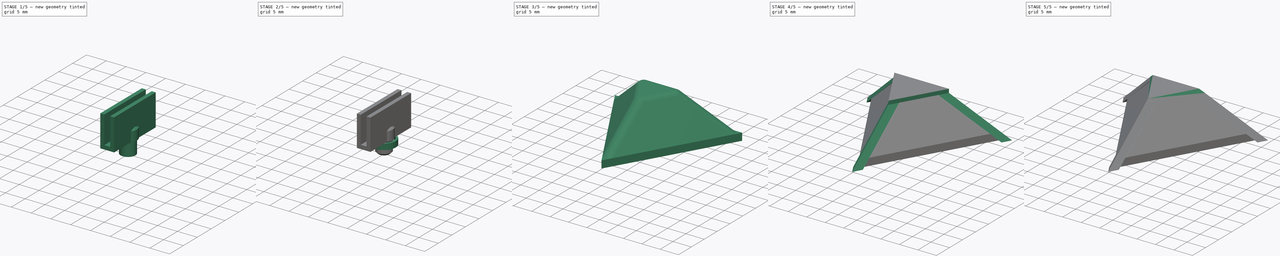
[diagram: build sequence overview — one tinted view per stage of 5, left to right]
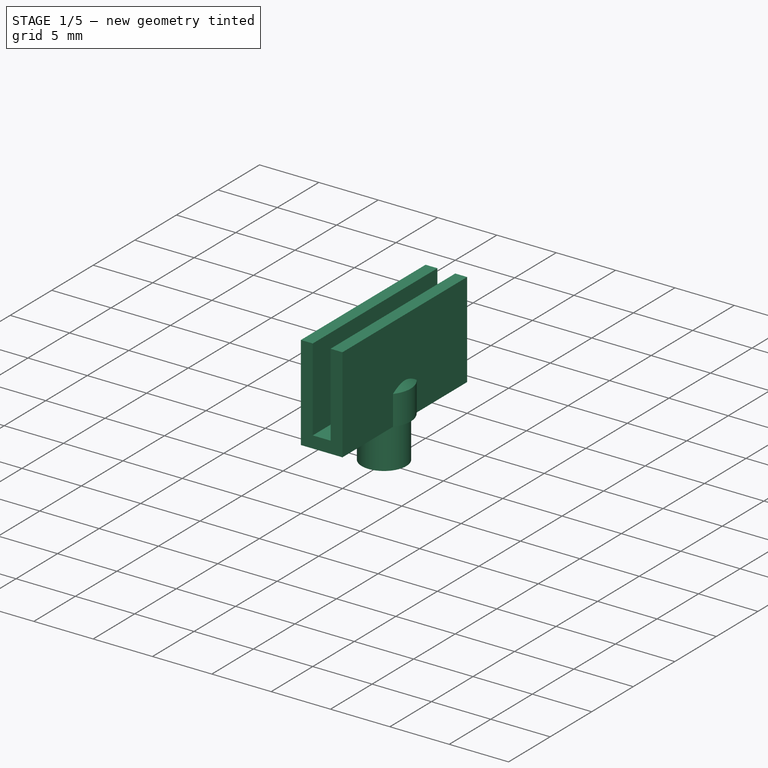
[diagram: stage 1 of 5 — iso view after this stage's code; geometry added in this stage tinted green]
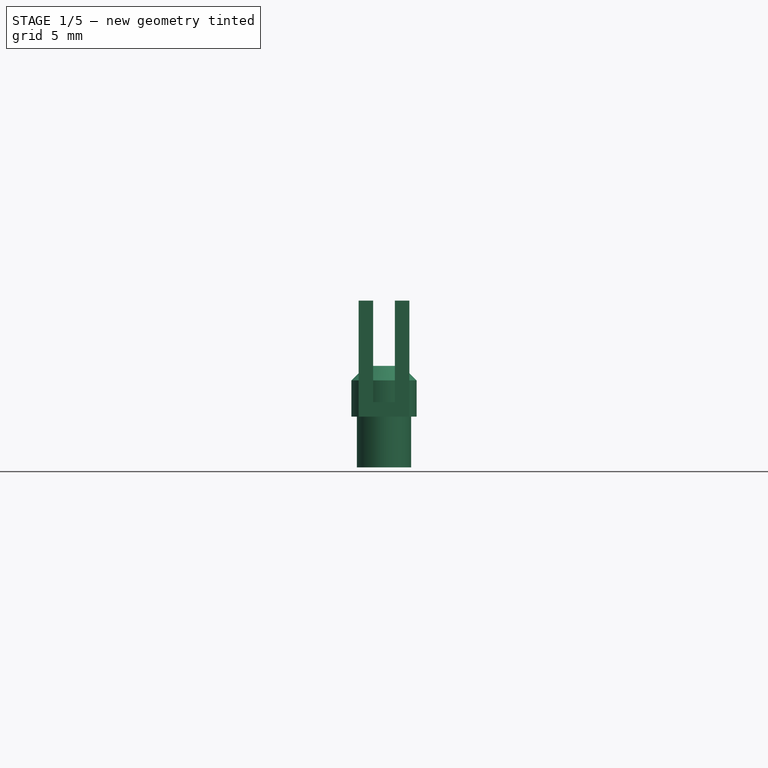
[diagram: stage 1 of 5 — front view after this stage's code; geometry added in this stage tinted green]
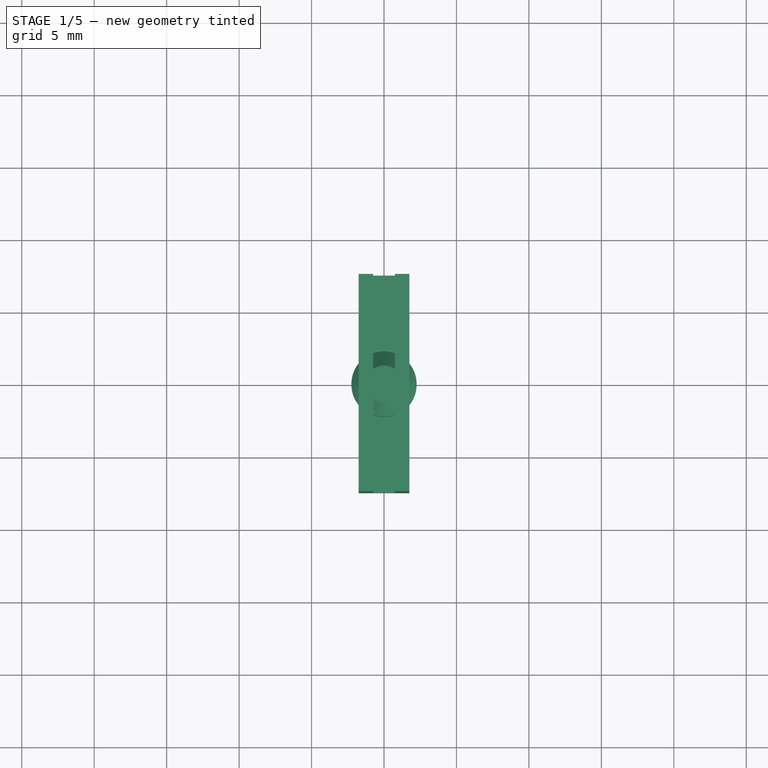
[diagram: stage 1 of 5 — top view after this stage's code; geometry added in this stage tinted green]
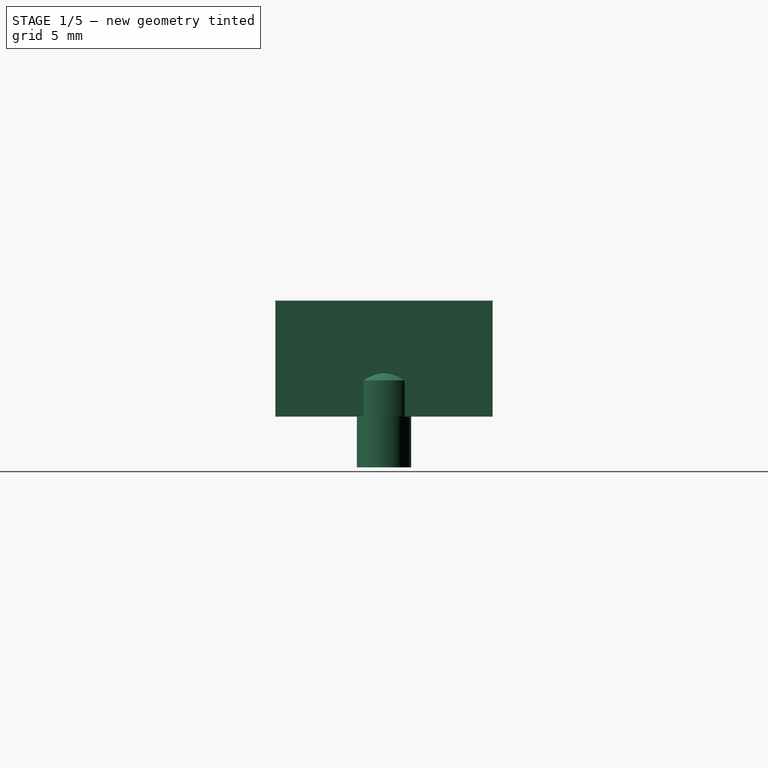
[diagram: stage 1 of 5 — right view after this stage's code; geometry added in this stage tinted green]
FCSTD DOCUMENT  (FreeCAD 0.20R29603 (Git))
Label: SafeCrystal
License: All rights reserved
LicenseURL: http://en.wikipedia.org/wiki/All_rights_reserved
objects: Sketcher::SketchObject×22, PartDesign::Pad×9, PartDesign::Body×6, PartDesign::AdditiveLoft×5, PartDesign::Chamfer×4, PartDesign::Pocket×2, PartDesign::Fillet×2, PartDesign::Boolean×1
note: 73 computed .brp shape members not serialized (recipe doc carries the construction recipe); baked Part::Feature solids carry a one-line shape summary decoded from their .brp

FEATURE [PartDesign::Body] Body002  label="Crystal"
  Group = -> [Sketch013,Pad002,Sketch014,Sketch015,AdditiveLoft004,Sketch016,Pocket001,Fillet001]
  Origin = -> Origin002
  Tip = -> Fillet001
FEATURE [Sketcher::SketchObject] Sketch017
  FullyConstrained = true
  MapMode = 5
  Support = -> [XY_Plane003]
  sketch-geometry (1):
    g0: Circle CenterX=0 CenterY=0 CenterZ=0 NormalX=0 NormalY=0 NormalZ=1 AngleXU=0 Radius=2.25
  constraints (2):
    c: Coincident(g0,g-1)
    c: Diameter(g0) = 4.5
FEATURE [PartDesign::Pad] Pad003
  Direction = (0,0,1)
  Length = 3.5
  Length2 = 10
  Profile = -> Sketch017
  ReferenceAxis = -> Sketch017 [N_Axis]
  Type = 0
FEATURE [PartDesign::Chamfer] Chamfer001
  Angle = 45
  Base = -> Pad003 [Edge3]
  BaseFeature = -> Pad003
  ChamferType = 0
  FlipDirection = false
  Size = 1
  Size2 = 1
  SupportTransform = false
  UseAllEdges = false
FEATURE [PartDesign::Body] Body004  label="Fixer"
  Group = -> [Sketch018,Pad004,Sketch019,Pad005]
  Origin = -> Origin004
  Tip = -> Pad005
FEATURE [Sketcher::SketchObject] Sketch020
  FullyConstrained = true
  MapMode = 5
  Placement = pos=(0,0,0) rot=(1,0,0;3.14159rad)
  Support = -> [Chamfer001]
  sketch-geometry (1):
    g0: Circle CenterX=0 CenterY=0 CenterZ=0 NormalX=0 NormalY=0 NormalZ=1 AngleXU=0 Radius=1.875
  constraints (2):
    c: Coincident(g0,g-1)
    c: Diameter(g0) = 3.75
FEATURE [PartDesign::Pad] Pad006
  BaseFeature = -> Chamfer001
  Direction = (0,0,-1)
  Length = 3.5
  Length2 = 10
  Profile = -> Sketch020
  ReferenceAxis = -> Sketch020 [N_Axis]
  Type = 0
FEATURE [PartDesign::Body] Body003  label="Kernel"
  Group = -> [Sketch017,Pad003,Chamfer001,Sketch020,Pad006,Chamfer002,Chamfer003]
  Origin = -> Origin003
  Tip = -> Chamfer003
FEATURE [Sketcher::SketchObject] Sketch021
  FullyConstrained = true
  MapMode = 5
  Support = -> [XY_Plane005]
  sketch-geometry (5):
    g0: LineSegment StartX=-1.75 StartY=-7.5 StartZ=0 EndX=-1.75 EndY=7.5 EndZ=0
    g1: LineSegment StartX=-1.75 StartY=7.5 StartZ=0 EndX=1.75 EndY=7.5 EndZ=0
    g2: LineSegment StartX=1.75 StartY=7.5 StartZ=0 EndX=1.75 EndY=-7.5 EndZ=0
    g3: LineSegment StartX=1.75 StartY=-7.5 StartZ=0 EndX=-1.75 EndY=-7.5 EndZ=0
    g4: GeomPoint X=0 Y=0 Z=0
  constraints (12):
    c: Coincident(g0,g1)
    c: Coincident(g1,g2)
    c: Coincident(g2,g3)
    c: Coincident(g3,g0)
    c: Horizontal(g1)
    c: Horizontal(g3)
    c: Vertical(g0)
    c: Vertical(g2)
    c: Symmetric(g1,g0,g4)
    c: Coincident(g4,g-1)
    c: DistanceX(g1,g1) = 3.5
    c: DistanceY(g0,g0) = 15
FEATURE [PartDesign::Pad] Pad007
  Direction = (0,0,1)
  Length = 1
  Length2 = 10
  Profile = -> Sketch021
  ReferenceAxis = -> Sketch021 [N_Axis]
  Type = 0
FEATURE [Sketcher::SketchObject] Sketch022
  FullyConstrained = true
  MapMode = 5
  Placement = pos=(0,0,1) rot=(0,0,1;0rad)
  Support = -> [Pad007]
  sketch-geometry (8):
    g0: LineSegment StartX=1.75 StartY=7.5 StartZ=0 EndX=0.75 EndY=7.5 EndZ=0
    g1: LineSegment StartX=0.75 StartY=7.5 StartZ=0 EndX=0.75 EndY=-7.5 EndZ=0
    g2: LineSegment StartX=0.75 StartY=-7.5 StartZ=0 EndX=1.75 EndY=-7.5 EndZ=0
    g3: LineSegment StartX=1.75 StartY=-7.5 StartZ=0 EndX=1.75 EndY=7.5 EndZ=0
    g4: LineSegment StartX=-1.75 StartY=7.5 StartZ=0 EndX=-0.75 EndY=7.5 EndZ=0
    g5: LineSegment StartX=-0.75 StartY=7.5 StartZ=0 EndX=-0.75 EndY=-7.5 EndZ=0
    g6: LineSegment StartX=-0.75 StartY=-7.5 StartZ=0 EndX=-1.75 EndY=-7.5 EndZ=0
    g7: LineSegment StartX=-1.75 StartY=-7.5 StartZ=0 EndX=-1.75 EndY=7.5 EndZ=0
  constraints (21):
    c: Coincident(g0,g1)
    c: Coincident(g1,g2)
    c: Coincident(g2,g3)
    c: Coincident(g3,g0)
    c: Horizontal(g0)
    c: Horizontal(g2)
    c: Vertical(g1)
    c: Coincident(g4,g5)
    c: Coincident(g5,g6)
    c: Coincident(g6,g7)
    c: Coincident(g7,g4)
    c: Horizontal(g4)
    c: Horizontal(g6)
    c: Vertical(g5)
    c: Vertical(g7)
    c: DistanceY(g3,g3) = 15
    c: Symmetric(g0,g2,g-1)
    c: DistanceX(g0,g0) = 1
    c: DistanceX(g0) = 1.75
    c: Symmetric(g4,g0,g-2)
    c: Symmetric(g6,g2,g-2)
FEATURE [PartDesign::Pad] Pad008
  BaseFeature = -> Pad007
  Direction = (0,0,1)
  Length = 7
  Length2 = 10
  Profile = -> Sketch022
  ReferenceAxis = -> Sketch022 [N_Axis]
  Type = 0
FEATURE [PartDesign::Body] Body005  label="Clip"
  Group = -> [Sketch021,Pad007,Sketch022,Pad008]
  Origin = -> Origin005
  Tip = -> Pad008
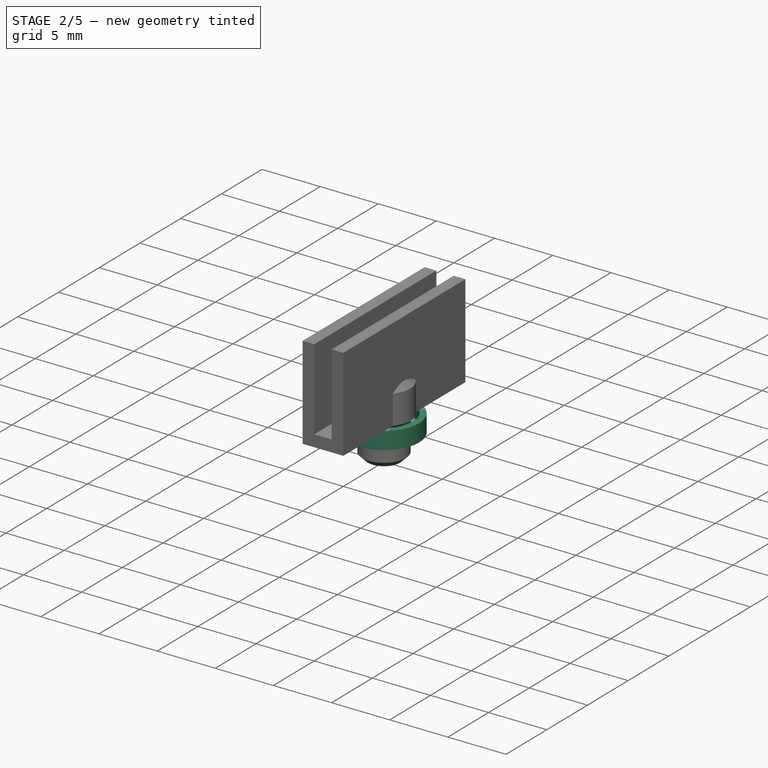
[diagram: stage 2 of 5 — iso view after this stage's code; geometry added in this stage tinted green]
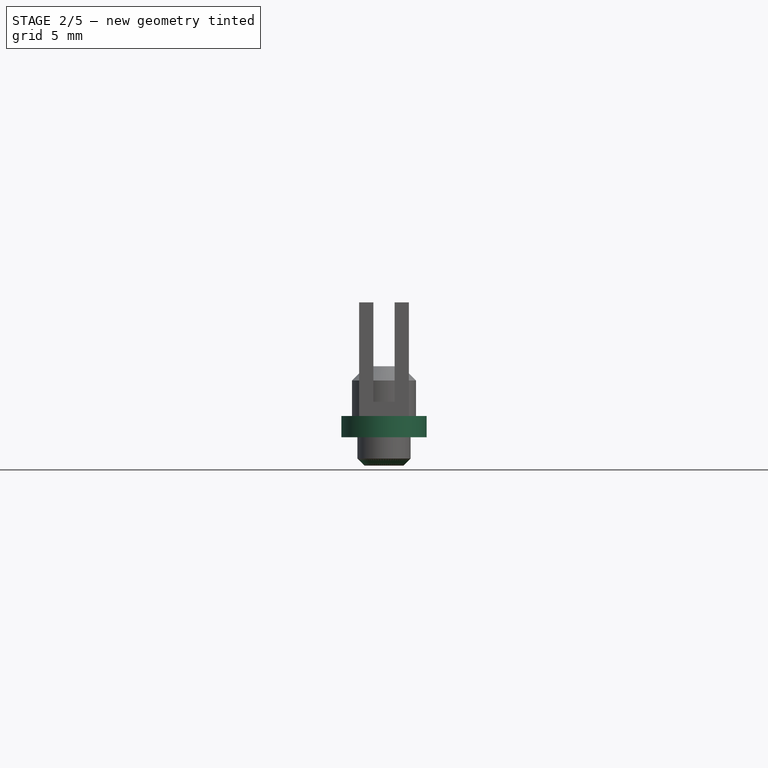
[diagram: stage 2 of 5 — front view after this stage's code; geometry added in this stage tinted green]
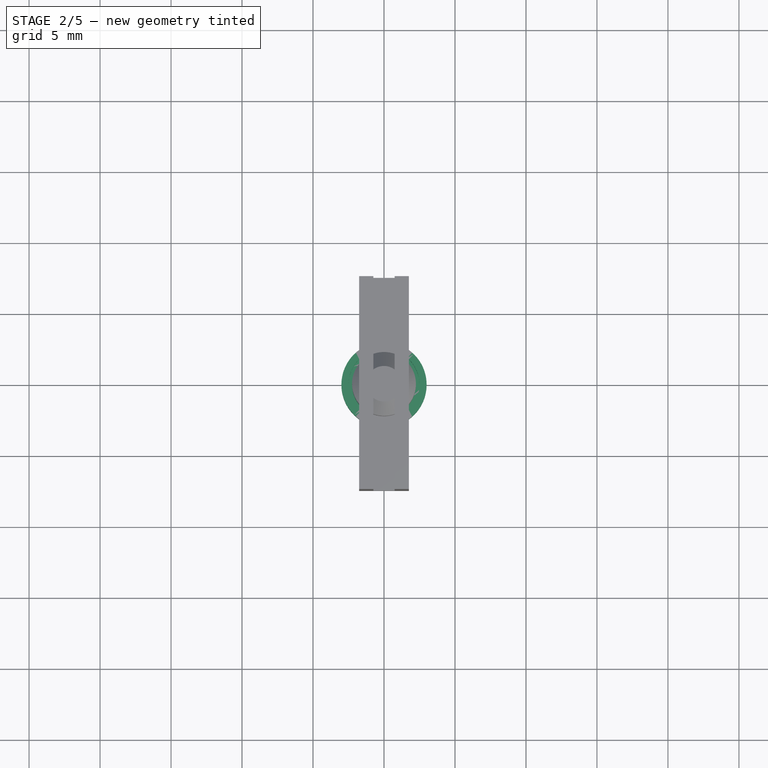
[diagram: stage 2 of 5 — top view after this stage's code; geometry added in this stage tinted green]
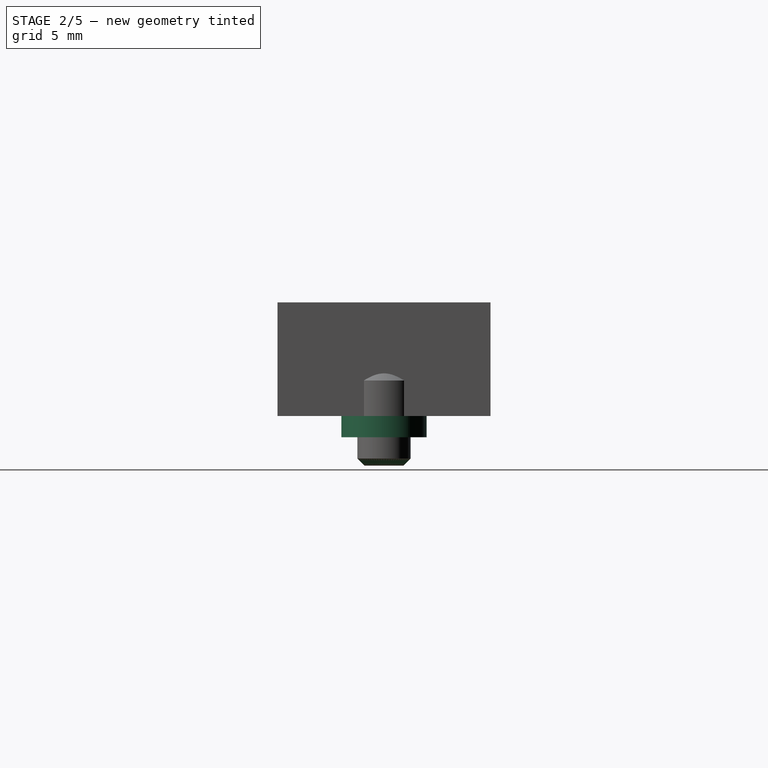
[diagram: stage 2 of 5 — right view after this stage's code; geometry added in this stage tinted green]
FEATURE [Sketcher::SketchObject] Sketch018
  FullyConstrained = true
  MapMode = 5
  Support = -> [XY_Plane004]
  sketch-geometry (2):
    g0: Circle CenterX=0 CenterY=0 CenterZ=0 NormalX=0 NormalY=0 NormalZ=1 AngleXU=0 Radius=2.5
    g1: Circle CenterX=0 CenterY=0 CenterZ=0 NormalX=0 NormalY=0 NormalZ=1 AngleXU=0 Radius=3
  constraints (4):
    c: Coincident(g0,g-1)
    c: Coincident(g1,g0)
    c: Diameter(g0) = 5
    c: Diameter(g1) = 6
FEATURE [PartDesign::Pad] Pad004
  Direction = (0,0,1)
  Length = 1
  Length2 = 10
  Profile = -> Sketch018
  ReferenceAxis = -> Sketch018 [N_Axis]
  Reversed = true
  Type = 0
FEATURE [Sketcher::SketchObject] Sketch019
  FullyConstrained = true
  MapMode = 5
  Placement = pos=(0,0,-1) rot=(1,0,0;3.14159rad)
  Support = -> [Pad004]
  sketch-geometry (1):
    g0: Circle CenterX=0 CenterY=0 CenterZ=0 NormalX=0 NormalY=0 NormalZ=1 AngleXU=0 Radius=3
  constraints (2):
    c: Coincident(g0,g-1)
    c: Diameter(g0) = 6
FEATURE [PartDesign::Pad] Pad005
  BaseFeature = -> Pad004
  Direction = (0,0,-1)
  Length = 0.5
  Length2 = 10
  Profile = -> Sketch019
  ReferenceAxis = -> Sketch019 [N_Axis]
  Type = 0
FEATURE [PartDesign::Chamfer] Chamfer002
  Angle = 45
  Base = -> Pad006 [Edge6]
  BaseFeature = -> Pad006
  ChamferType = 0
  FlipDirection = false
  Size = 0.36
  Size2 = 1
  SupportTransform = false
  UseAllEdges = false
FEATURE [PartDesign::Chamfer] Chamfer003
  Angle = 45
  Base = -> Chamfer002 [Edge8]
  BaseFeature = -> Chamfer002
  ChamferType = 0
  FlipDirection = false
  Size = 0.5
  Size2 = 1
  SupportTransform = false
  UseAllEdges = false
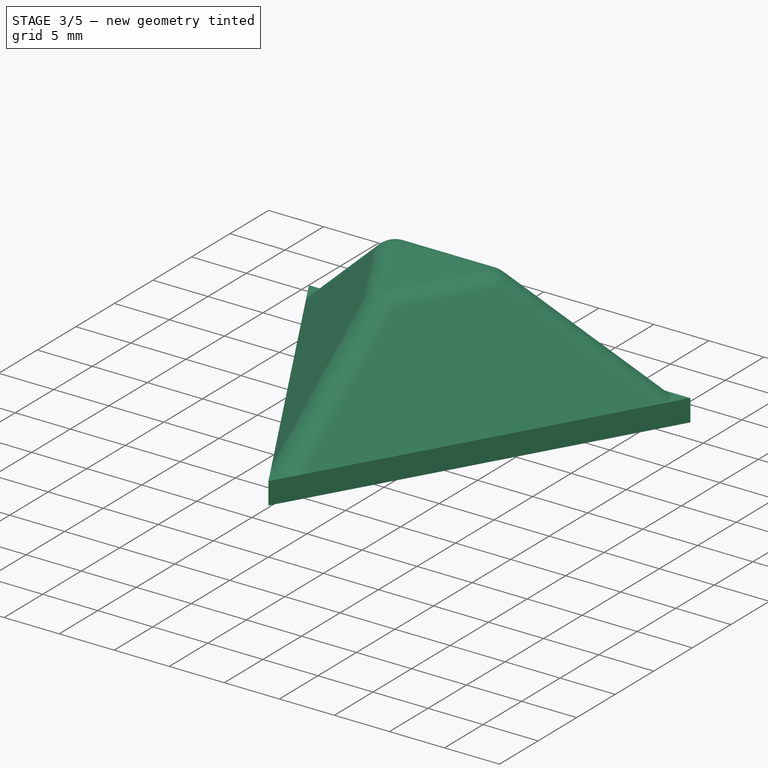
[diagram: stage 3 of 5 — iso view after this stage's code; geometry added in this stage tinted green]
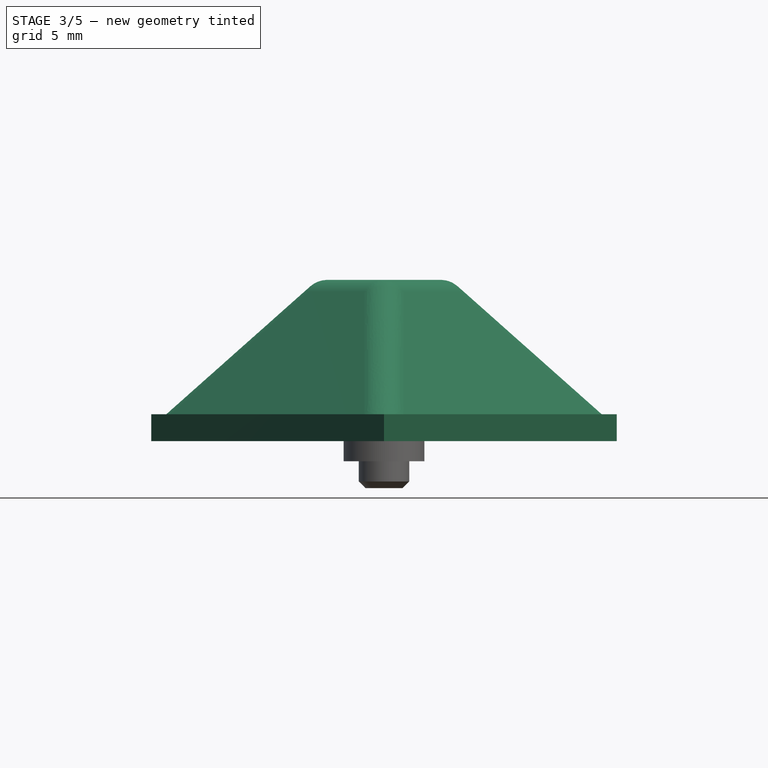
[diagram: stage 3 of 5 — front view after this stage's code; geometry added in this stage tinted green]
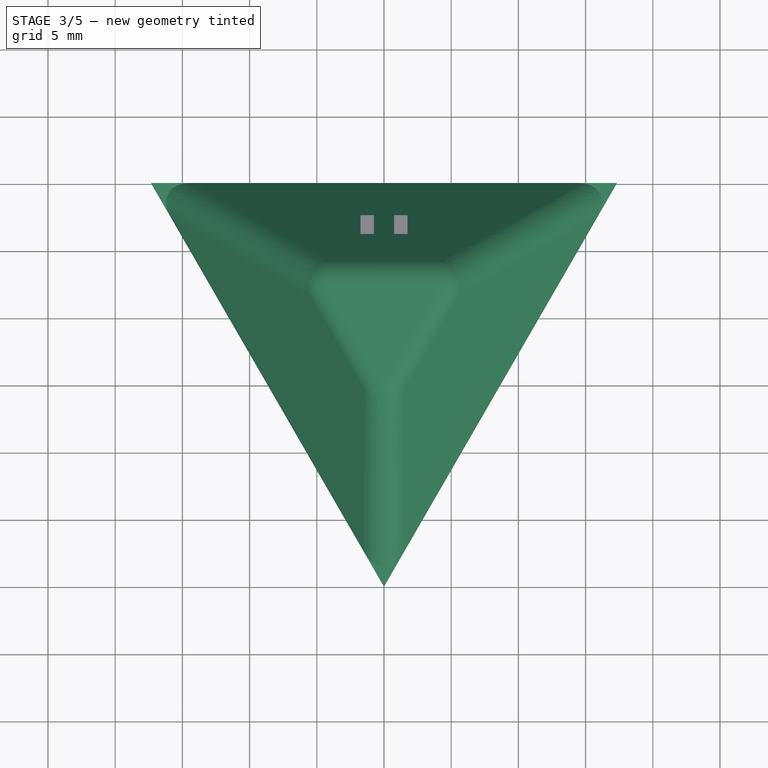
[diagram: stage 3 of 5 — top view after this stage's code; geometry added in this stage tinted green]
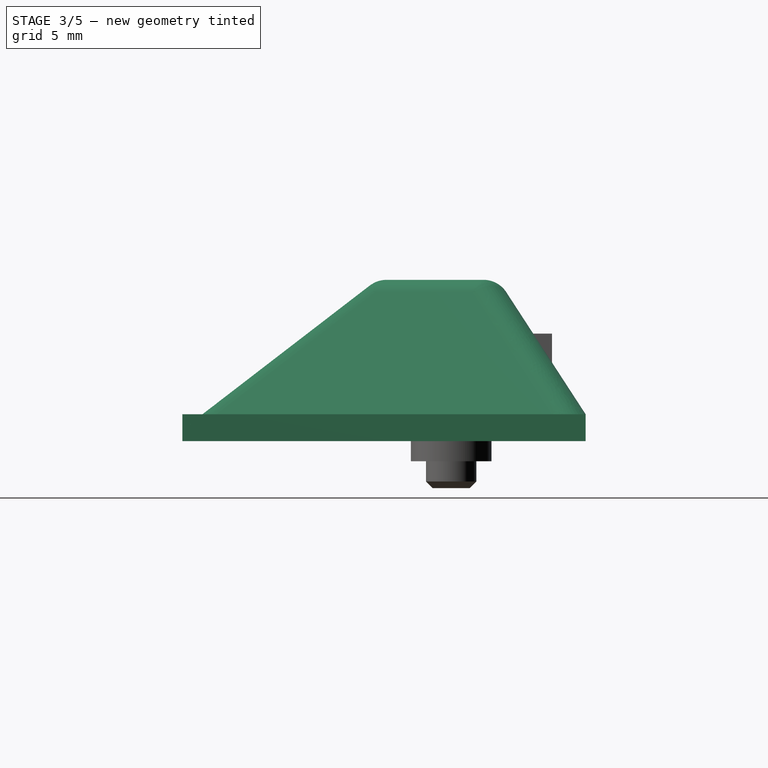
[diagram: stage 3 of 5 — right view after this stage's code; geometry added in this stage tinted green]
FEATURE [Sketcher::SketchObject] Sketch
  FullyConstrained = true
  MapMode = 5
  Support = -> [XY_Plane]
  sketch-geometry (7):
    g0: Circle CenterX=0 CenterY=0 CenterZ=0 NormalX=0 NormalY=0 NormalZ=1 AngleXU=0 Radius=20
    g1: LineSegment StartX=0 StartY=0 StartZ=0 EndX=17.3205 EndY=10 EndZ=0
    g2: LineSegment StartX=0 StartY=0 StartZ=0 EndX=-17.3205 EndY=10 EndZ=0
    g3: LineSegment StartX=0 StartY=0 StartZ=0 EndX=-6e-16 EndY=-20 EndZ=0
    g4: LineSegment StartX=17.3205 StartY=10 StartZ=0 EndX=-17.3205 EndY=10 EndZ=0
    g5: LineSegment StartX=-17.3205 StartY=10 StartZ=0 EndX=0 EndY=-20 EndZ=0
    g6: LineSegment StartX=-6e-16 StartY=-20 StartZ=0 EndX=17.3205 EndY=10 EndZ=0
  constraints (17):
    c: Coincident(g0,g-1)
    c: Diameter(g0) = 40
    c: Coincident(g1,g0)
    c: PointOnObject(g1,g0)
    c: Coincident(g2,g0)
    c: PointOnObject(g2,g0)
    c: Coincident(g3,g0)
    c: PointOnObject(g3,g0)
    c: Angle(g-1,g1) = 0.523599
    c: Angle(g-1,g2) = 2.61799
    c: Angle(g3,g-1) = 1.5708
    c: Coincident(g2,g4)
    c: Coincident(g1,g4)
    c: Coincident(g5,g4)
    c: Coincident(g5,g3)
    c: Coincident(g6,g5)
    c: Coincident(g6,g4)
FEATURE [PartDesign::Pad] Pad
  Direction = (0,0,1)
  Length = 2
  Length2 = 10
  Profile = -> Sketch
  ReferenceAxis = -> Sketch [N_Axis]
  Type = 0
FEATURE [PartDesign::Body] Body001  label="OuterBorder"
  Group = -> [Sketch004,Sketch005,Sketch006,AdditiveLoft001,Sketch007,Sketch008,Sketch010,Pad001,AdditiveLoft002,Sketch011,Sketch012,AdditiveLoft003,Chamfer,Boolean]
  Origin = -> Origin001
  Tip = -> Boolean
FEATURE [Sketcher::SketchObject] Sketch013
  FullyConstrained = true
  MapMode = 5
  Support = -> [XY_Plane002]
  sketch-geometry (7):
    g0: Circle CenterX=0 CenterY=0 CenterZ=0 NormalX=0 NormalY=0 NormalZ=1 AngleXU=0 Radius=20
    g1: LineSegment StartX=0 StartY=0 StartZ=0 EndX=17.3205 EndY=10 EndZ=0
    g2: LineSegment StartX=0 StartY=0 StartZ=0 EndX=-17.3205 EndY=10 EndZ=0
    g3: LineSegment StartX=0 StartY=0 StartZ=0 EndX=-6e-16 EndY=-20 EndZ=0
    g4: LineSegment StartX=17.3205 StartY=10 StartZ=0 EndX=-17.3205 EndY=10 EndZ=0
    g5: LineSegment StartX=-17.3205 StartY=10 StartZ=0 EndX=0 EndY=-20 EndZ=0
    g6: LineSegment StartX=-6e-16 StartY=-20 StartZ=0 EndX=17.3205 EndY=10 EndZ=0
  constraints (17):
    c: Coincident(g0,g-1)
    c: Diameter(g0) = 40
    c: Coincident(g1,g0)
    c: PointOnObject(g1,g0)
    c: Coincident(g2,g0)
    c: PointOnObject(g2,g0)
    c: Coincident(g3,g0)
    c: PointOnObject(g3,g0)
    c: Angle(g-1,g1) = 0.523599
    c: Angle(g-1,g2) = 2.61799
    c: Angle(g3,g-1) = 1.5708
    c: Coincident(g2,g4)
    c: Coincident(g1,g4)
    c: Coincident(g5,g4)
    c: Coincident(g5,g3)
    c: Coincident(g6,g5)
    c: Coincident(g6,g4)
FEATURE [PartDesign::Pad] Pad002
  Direction = (0,0,1)
  Length = 2
  Length2 = 10
  Profile = -> Sketch013
  ReferenceAxis = -> Sketch013 [N_Axis]
  Type = 0
FEATURE [Sketcher::SketchObject] Sketch014
  AttachmentOffset = pos=(0,0,10) rot=(0,0,1;0rad)
  FullyConstrained = true
  MapMode = 5
  Placement = pos=(0,0,12) rot=(0,0,1;0rad)
  Support = -> [Pad002]
  sketch-geometry (4):
    g0: LineSegment StartX=-1.8e-15 StartY=-7 StartZ=0 EndX=6.06218 EndY=3.5 EndZ=0
    g1: LineSegment StartX=6.06218 StartY=3.5 StartZ=0 EndX=-6.06218 EndY=3.5 EndZ=0
    g2: LineSegment StartX=-6.06218 StartY=3.5 StartZ=0 EndX=-1.8e-15 EndY=-7 EndZ=0
    g3: Circle CenterX=0 CenterY=0 CenterZ=0 NormalX=0 NormalY=0 NormalZ=1 AngleXU=0 Radius=7
  constraints (11):
    c: Coincident(g0,g1)
    c: Coincident(g1,g2)
    c: Coincident(g2,g0)
    c: Equal(g0,g1)
    c: Equal(g0,g2)
    c: PointOnObject(g0,g3)
    c: PointOnObject(g1,g3)
    c: PointOnObject(g2,g3)
    c: Coincident(g3,g-1)
    c: PointOnObject(g2,g-2)
    c: Diameter(g3) = 14
FEATURE [Sketcher::SketchObject] Sketch015
  FullyConstrained = true
  MapMode = 5
  Placement = pos=(0,0,2) rot=(0,0,1;0rad)
  Support = -> [Pad002]
  sketch-geometry (7):
    g0: Circle CenterX=0 CenterY=0 CenterZ=0 NormalX=0 NormalY=0 NormalZ=1 AngleXU=0 Radius=20
    g1: LineSegment StartX=0 StartY=0 StartZ=0 EndX=17.3205 EndY=10 EndZ=0
    g2: LineSegment StartX=0 StartY=0 StartZ=0 EndX=-17.3205 EndY=10 EndZ=0
    g3: LineSegment StartX=0 StartY=0 StartZ=0 EndX=-6e-16 EndY=-20 EndZ=0
    g4: LineSegment StartX=17.3205 StartY=10 StartZ=0 EndX=-17.3205 EndY=10 EndZ=0
    g5: LineSegment StartX=-17.3205 StartY=10 StartZ=0 EndX=0 EndY=-20 EndZ=0
    g6: LineSegment StartX=-6e-16 StartY=-20 StartZ=0 EndX=17.3205 EndY=10 EndZ=0
  constraints (17):
    c: Coincident(g0,g-1)
    c: Diameter(g0) = 40
    c: Coincident(g1,g0)
    c: PointOnObject(g1,g0)
    c: Coincident(g2,g0)
    c: PointOnObject(g2,g0)
    c: Coincident(g3,g0)
    c: PointOnObject(g3,g0)
    c: Angle(g-1,g1) = 0.523599
    c: Angle(g-1,g2) = 2.61799
    c: Angle(g3,g-1) = 1.5708
    c: Coincident(g2,g4)
    c: Coincident(g1,g4)
    c: Coincident(g5,g4)
    c: Coincident(g5,g3)
    c: Coincident(g6,g5)
    c: Coincident(g6,g4)
FEATURE [PartDesign::AdditiveLoft] AdditiveLoft004
  BaseFeature = -> Pad002
  Closed = false
  Profile = -> Sketch015
  Ruled = false
  Sections = -> [Sketch014]
FEATURE [Sketcher::SketchObject] Sketch016
  FullyConstrained = true
  MapMode = 5
  Placement = pos=(0,0,0) rot=(1,0,0;3.14159rad)
  Support = -> [AdditiveLoft004]
  sketch-geometry (1):
    g0: Circle CenterX=0 CenterY=0 CenterZ=0 NormalX=0 NormalY=0 NormalZ=1 AngleXU=0 Radius=2.5
  constraints (2):
    c: Coincident(g0,g-1)
    c: Diameter(g0) = 5
FEATURE [PartDesign::Pocket] Pocket001
  BaseFeature = -> AdditiveLoft004
  Direction = (0,0,1)
  Length = 4
  Length2 = 5
  Profile = -> Sketch016
  ReferenceAxis = -> Sketch016 [N_Axis]
  Type = 0
FEATURE [PartDesign::Fillet] Fillet001
  Base = -> Pocket001 [Edge13,Edge12,Edge16,Edge11,Edge14,Edge15]
  BaseFeature = -> Pocket001
  Radius = 2
  SupportTransform = false
  UseAllEdges = false
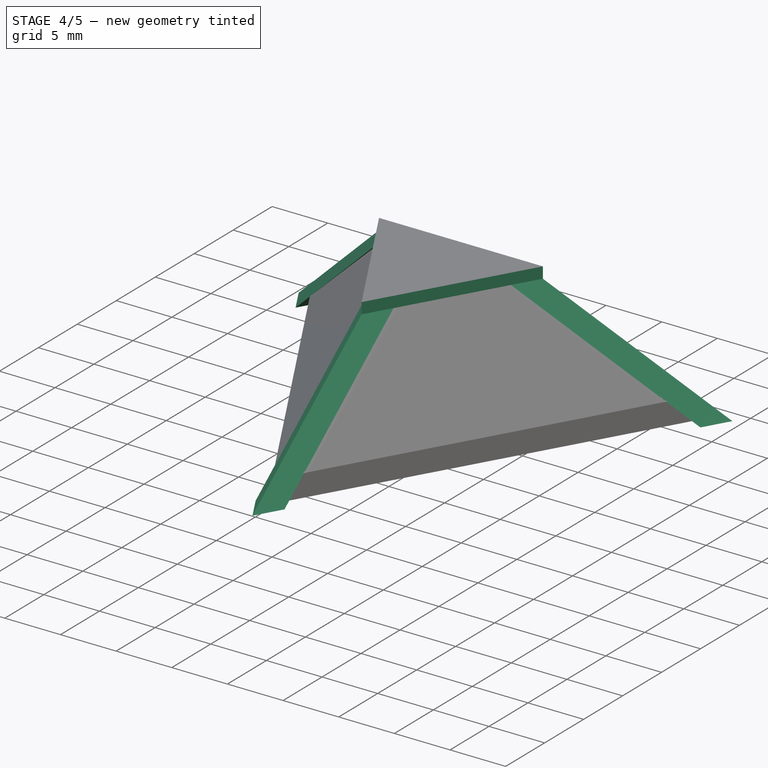
[diagram: stage 4 of 5 — iso view after this stage's code; geometry added in this stage tinted green]
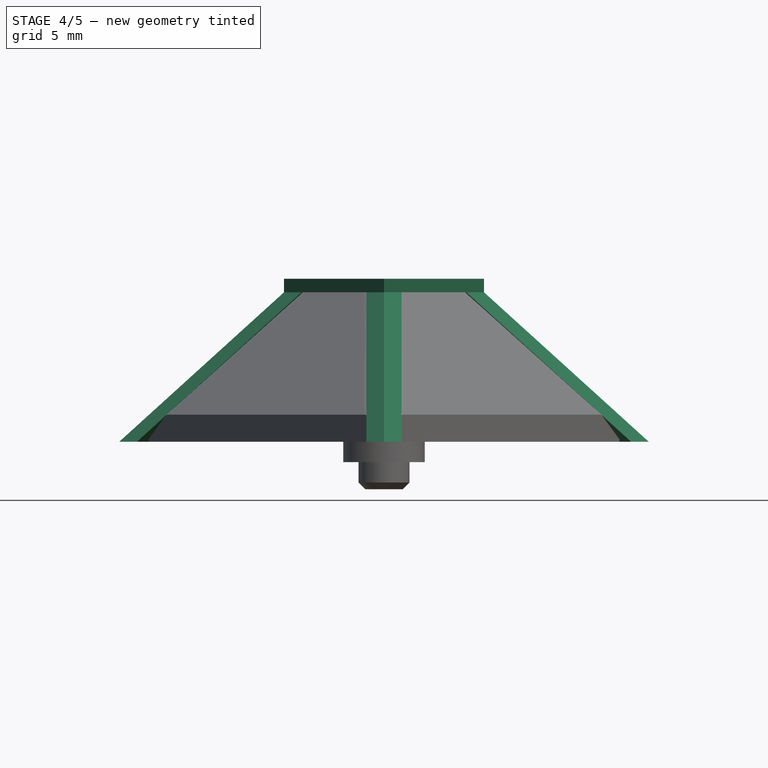
[diagram: stage 4 of 5 — front view after this stage's code; geometry added in this stage tinted green]
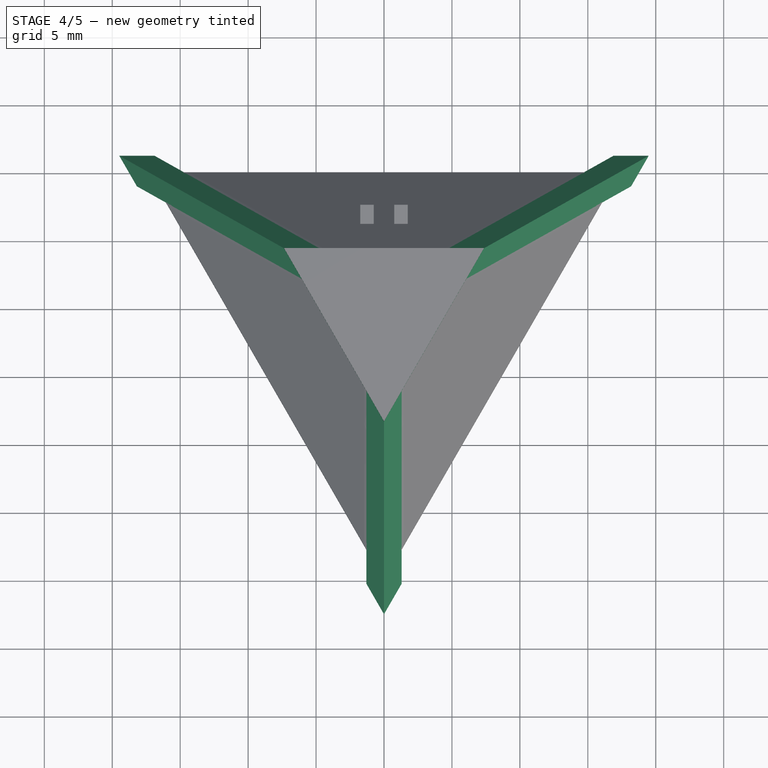
[diagram: stage 4 of 5 — top view after this stage's code; geometry added in this stage tinted green]
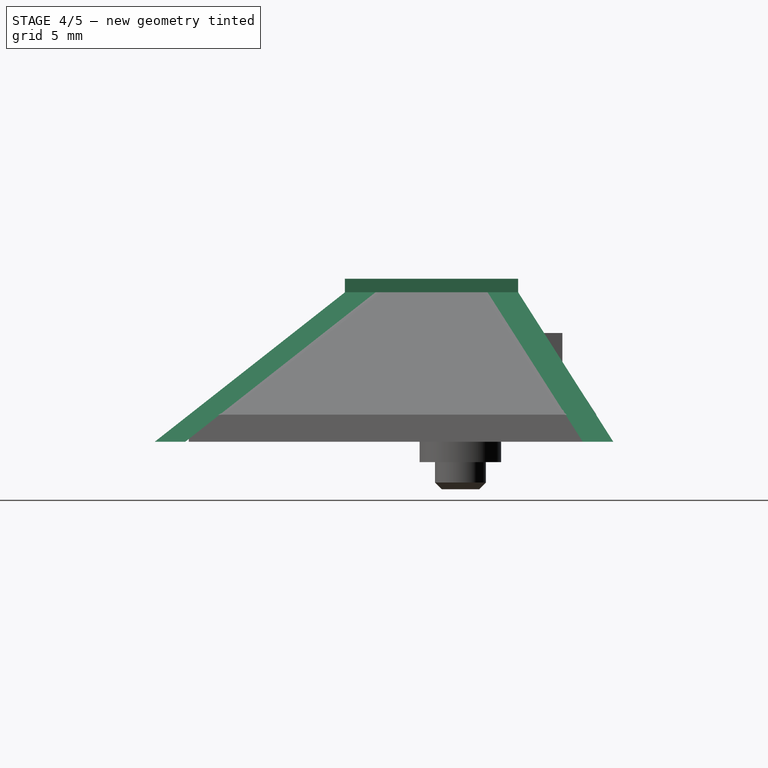
[diagram: stage 4 of 5 — right view after this stage's code; geometry added in this stage tinted green]
FEATURE [PartDesign::Body] Body
  Group = -> [Sketch,Pad,Sketch001,Sketch002,AdditiveLoft,Sketch003,Pocket,Fillet]
  Origin = -> Origin
  Tip = -> Fillet
FEATURE [Sketcher::SketchObject] Sketch004
  FullyConstrained = true
  MapMode = 5
  Support = -> [XY_Plane001]
  sketch-geometry (7):
    g0: Circle CenterX=0 CenterY=0 CenterZ=0 NormalX=0 NormalY=0 NormalZ=1 AngleXU=0 Radius=21
    g1: LineSegment StartX=0 StartY=0 StartZ=0 EndX=25.9808 EndY=15 EndZ=0
    g2: Circle CenterX=0 CenterY=0 CenterZ=0 NormalX=0 NormalY=0 NormalZ=1 AngleXU=0 Radius=30
    g3: LineSegment StartX=19.4856 StartY=11.25 StartZ=0 EndX=16.8875 EndY=11.25 EndZ=0
    g4: LineSegment StartX=16.8875 StartY=11.25 StartZ=0 EndX=18.1865 EndY=9 EndZ=0
    g5: LineSegment StartX=18.1865 StartY=9 StartZ=0 EndX=19.4856 EndY=11.25 EndZ=0
    g6: Circle CenterX=18.1865 CenterY=10.5 CenterZ=0 NormalX=0 NormalY=0 NormalZ=1 AngleXU=0 Radius=1.5
  constraints (19):
    c: Coincident(g0,g-1)
    c: Diameter(g0) = 42
    c: Coincident(g1,g0)
    c: Angle(g-1,g1) = 0.523599
    c: Coincident(g2,g0)
    c: Diameter(g2) = 60
    c: PointOnObject(g1,g2)
    c: Coincident(g3,g4)
    c: Coincident(g4,g5)
    c: Coincident(g5,g3)
    c: Equal(g3,g4)
    c: Equal(g3,g5)
    c: PointOnObject(g3,g6)
    c: PointOnObject(g4,g6)
    c: PointOnObject(g5,g6)
    c: PointOnObject(g5,g1)
    c: PointOnObject(g6,g1)
    c: PointOnObject(g6,g0)
    c: Diameter(g6) = 3
FEATURE [Sketcher::SketchObject] Sketch005
  AttachmentOffset = pos=(0,0,9) rot=(0,0,1;0rad)
  FullyConstrained = true
  MapMode = 5
  Placement = pos=(0,0,11) rot=(0,0,1;0rad)
  Support = -> [Pad]
  sketch-geometry (7):
    g0: Circle CenterX=0 CenterY=0 CenterZ=0 NormalX=0 NormalY=0 NormalZ=1 AngleXU=0 Radius=7
    g1: LineSegment StartX=0 StartY=0 StartZ=0 EndX=8.66025 EndY=5 EndZ=0
    g2: Circle CenterX=0 CenterY=0 CenterZ=0 NormalX=0 NormalY=0 NormalZ=1 AngleXU=0 Radius=10
    g3: LineSegment StartX=6.06218 StartY=2 StartZ=0 EndX=7.36122 EndY=4.25 EndZ=0
    g4: LineSegment StartX=7.36122 StartY=4.25 StartZ=0 EndX=4.76314 EndY=4.25 EndZ=0
    g5: LineSegment StartX=4.76314 StartY=4.25 StartZ=0 EndX=6.06218 EndY=2 EndZ=0
    g6: Circle CenterX=6.06218 CenterY=3.5 CenterZ=0 NormalX=0 NormalY=0 NormalZ=1 AngleXU=0 Radius=1.5
  constraints (19):
    c: Coincident(g0,g-1)
    c: Diameter(g0) = 14
    c: Coincident(g1,g0)
    c: Angle(g-1,g1) = 0.523599
    c: Coincident(g2,g0)
    c: Diameter(g2) = 20
    c: PointOnObject(g1,g2)
    c: Coincident(g3,g4)
    c: Coincident(g4,g5)
    c: Coincident(g5,g3)
    c: Equal(g3,g4)
    c: Equal(g3,g5)
    c: PointOnObject(g3,g6)
    c: PointOnObject(g4,g6)
    c: PointOnObject(g5,g6)
    c: PointOnObject(g6,g0)
    c: PointOnObject(g3,g1)
    c: PointOnObject(g6,g1)
    c: Diameter(g6) = 3
FEATURE [Sketcher::SketchObject] Sketch006
  AttachmentOffset = pos=(0,0,1) rot=(0,0,1;0rad)
  FullyConstrained = true
  MapMode = 5
  Placement = pos=(0,0,3) rot=(0,0,1;0rad)
  Support = -> [Pad]
  sketch-geometry (7):
    g0: Circle CenterX=0 CenterY=0 CenterZ=0 NormalX=0 NormalY=0 NormalZ=1 AngleXU=0 Radius=20
    g1: LineSegment StartX=0 StartY=0 StartZ=0 EndX=17.3205 EndY=10 EndZ=0
    g2: LineSegment StartX=0 StartY=0 StartZ=0 EndX=-17.3205 EndY=10 EndZ=0
    g3: LineSegment StartX=0 StartY=0 StartZ=0 EndX=-6e-16 EndY=-20 EndZ=0
    g4: LineSegment StartX=17.3205 StartY=10 StartZ=0 EndX=-17.3205 EndY=10 EndZ=0
    g5: LineSegment StartX=-17.3205 StartY=10 StartZ=0 EndX=0 EndY=-20 EndZ=0
    g6: LineSegment StartX=-6e-16 StartY=-20 StartZ=0 EndX=17.3205 EndY=10 EndZ=0
  constraints (17):
    c: Coincident(g0,g-1)
    c: Diameter(g0) = 40
    c: Coincident(g1,g0)
    c: PointOnObject(g1,g0)
    c: Coincident(g2,g0)
    c: PointOnObject(g2,g0)
    c: Coincident(g3,g0)
    c: PointOnObject(g3,g0)
    c: Angle(g-1,g1) = 0.523599
    c: Angle(g-1,g2) = 2.61799
    c: Angle(g3,g-1) = 1.5708
    c: Coincident(g2,g4)
    c: Coincident(g1,g4)
    c: Coincident(g5,g4)
    c: Coincident(g5,g3)
    c: Coincident(g6,g5)
    c: Coincident(g6,g4)
FEATURE [PartDesign::AdditiveLoft] AdditiveLoft001
  Closed = false
  Profile = -> Sketch004
  Ruled = false
  Sections = -> [Sketch005]
FEATURE [Sketcher::SketchObject] Sketch007
  FullyConstrained = true
  MapMode = 5
  Support = -> [XY_Plane001]
  sketch-geometry (7):
    g0: Circle CenterX=0 CenterY=0 CenterZ=0 NormalX=0 NormalY=0 NormalZ=1 AngleXU=0 Radius=21
    g1: Circle CenterX=0 CenterY=0 CenterZ=0 NormalX=0 NormalY=0 NormalZ=1 AngleXU=0 Radius=30
    g2: LineSegment StartX=0 StartY=0 StartZ=0 EndX=-9e-16 EndY=-30 EndZ=0
    g3: LineSegment StartX=-9e-16 StartY=-22.5 StartZ=0 EndX=1.29904 EndY=-20.25 EndZ=0
    g4: LineSegment StartX=1.29904 StartY=-20.25 StartZ=0 EndX=-1.29904 EndY=-20.25 EndZ=0
    g5: LineSegment StartX=-1.29904 StartY=-20.25 StartZ=0 EndX=-9e-16 EndY=-22.5 EndZ=0
    g6: Circle CenterX=-6e-16 CenterY=-21 CenterZ=0 NormalX=0 NormalY=0 NormalZ=1 AngleXU=0 Radius=1.5
  constraints (19):
    c: Coincident(g0,g-1)
    c: Diameter(g0) = 42
    c: Coincident(g1,g0)
    c: Diameter(g1) = 60
    c: Coincident(g2,g0)
    c: PointOnObject(g2,g1)
    c: Angle(g2,g-1) = 1.5708
    c: Coincident(g3,g4)
    c: Coincident(g4,g5)
    c: Coincident(g5,g3)
    c: Equal(g3,g4)
    c: Equal(g3,g5)
    c: PointOnObject(g3,g6)
    c: PointOnObject(g4,g6)
    c: PointOnObject(g5,g6)
    c: PointOnObject(g6,g0)
    c: PointOnObject(g5,g2)
    c: PointOnObject(g6,g2)
    c: Diameter(g6) = 3
FEATURE [Sketcher::SketchObject] Sketch008
  AttachmentOffset = pos=(0,0,9) rot=(0,0,1;0rad)
  FullyConstrained = true
  MapMode = 5
  Placement = pos=(0,0,11) rot=(0,0,1;0rad)
  Support = -> [Pad]
  sketch-geometry (7):
    g0: Circle CenterX=0 CenterY=0 CenterZ=0 NormalX=0 NormalY=0 NormalZ=1 AngleXU=0 Radius=7
    g1: Circle CenterX=0 CenterY=0 CenterZ=0 NormalX=0 NormalY=0 NormalZ=1 AngleXU=0 Radius=10
    g2: LineSegment StartX=0 StartY=0 StartZ=0 EndX=6e-16 EndY=-10 EndZ=0
    g3: LineSegment StartX=4e-16 StartY=-8.5 StartZ=0 EndX=1.29904 EndY=-6.25 EndZ=0
    g4: LineSegment StartX=1.29904 StartY=-6.25 StartZ=0 EndX=-1.29904 EndY=-6.25 EndZ=0
    g5: LineSegment StartX=-1.29904 StartY=-6.25 StartZ=0 EndX=4e-16 EndY=-8.5 EndZ=0
    g6: Circle CenterX=4e-16 CenterY=-7 CenterZ=0 NormalX=0 NormalY=0 NormalZ=1 AngleXU=0 Radius=1.5
  constraints (19):
    c: Coincident(g0,g-1)
    c: Diameter(g0) = 14
    c: Coincident(g1,g0)
    c: Diameter(g1) = 20
    c: Coincident(g2,g0)
    c: PointOnObject(g2,g1)
    c: Angle(g2,g-1) = 1.5708
    c: Coincident(g3,g4)
    c: Coincident(g4,g5)
    c: Coincident(g5,g3)
    c: Equal(g3,g4)
    c: Equal(g3,g5)
    c: PointOnObject(g3,g6)
    c: PointOnObject(g4,g6)
    c: PointOnObject(g5,g6)
    c: PointOnObject(g6,g2)
    c: PointOnObject(g5,g2)
    c: PointOnObject(g6,g0)
    c: Diameter(g6) = 3
FEATURE [Sketcher::SketchObject] Sketch010
  AttachmentOffset = pos=(0,0,9) rot=(0,0,1;0rad)
  FullyConstrained = true
  MapMode = 5
  Placement = pos=(0,0,11) rot=(0,0,1;0rad)
  Support = -> [Pad]
  sketch-geometry (20):
    g0: Circle CenterX=0 CenterY=0 CenterZ=0 NormalX=0 NormalY=0 NormalZ=1 AngleXU=0 Radius=7
    g1: LineSegment StartX=0 StartY=0 StartZ=0 EndX=8.66025 EndY=5 EndZ=0
    g2: Circle CenterX=0 CenterY=0 CenterZ=0 NormalX=0 NormalY=0 NormalZ=1 AngleXU=0 Radius=10
    g3: LineSegment StartX=6.06218 StartY=2 StartZ=0 EndX=7.36122 EndY=4.25 EndZ=0
    g4: LineSegment StartX=7.36122 StartY=4.25 StartZ=0 EndX=4.76314 EndY=4.25 EndZ=0
    g5: LineSegment StartX=4.76314 StartY=4.25 StartZ=0 EndX=6.06218 EndY=2 EndZ=0
    g6: Circle CenterX=6.06218 CenterY=3.5 CenterZ=0 NormalX=0 NormalY=0 NormalZ=1 AngleXU=0 Radius=1.5
    g7: LineSegment StartX=0 StartY=0 StartZ=0 EndX=8e-16 EndY=-10 EndZ=0
    g8: LineSegment StartX=0 StartY=0 StartZ=0 EndX=-8.66025 EndY=5 EndZ=0
    g9: LineSegment StartX=1.8e-15 StartY=-8.5 StartZ=0 EndX=1.29904 EndY=-6.25 EndZ=0
    g10: LineSegment StartX=1.29904 StartY=-6.25 StartZ=0 EndX=-1.29904 EndY=-6.25 EndZ=0
    g11: LineSegment StartX=-1.29904 StartY=-6.25 StartZ=0 EndX=1.8e-15 EndY=-8.5 EndZ=0
    g12: Circle CenterX=6e-16 CenterY=-7 CenterZ=0 NormalX=0 NormalY=0 NormalZ=1 AngleXU=0 Radius=1.5
    g13: LineSegment StartX=-7.36122 StartY=4.25 StartZ=0 EndX=-6.06218 EndY=2 EndZ=0
    g14: LineSegment StartX=-6.06218 StartY=2 StartZ=0 EndX=-4.76314 EndY=4.25 EndZ=0
    g15: LineSegment StartX=-4.76314 StartY=4.25 StartZ=0 EndX=-7.36122 EndY=4.25 EndZ=0
    g16: Circle CenterX=-6.06218 CenterY=3.5 CenterZ=0 NormalX=0 NormalY=0 NormalZ=1 AngleXU=0 Radius=1.5
    g17: LineSegment StartX=-7.36122 StartY=4.25 StartZ=0 EndX=7.36122 EndY=4.25 EndZ=0
    g18: LineSegment StartX=-7.36122 StartY=4.25 StartZ=0 EndX=1.8e-15 EndY=-8.5 EndZ=0
    g19: LineSegment StartX=7.36122 StartY=4.25 StartZ=0 EndX=1.8e-15 EndY=-8.5 EndZ=0
  constraints (55):
    c: Coincident(g0,g-1)
    c: Diameter(g0) = 14
    c: Coincident(g1,g0)
    c: Angle(g-1,g1) = 0.523599
    c: Coincident(g2,g0)
    c: Diameter(g2) = 20
    c: PointOnObject(g1,g2)
    c: Coincident(g3,g4)
    c: Coincident(g4,g5)
    c: Coincident(g5,g3)
    c: Equal(g3,g4)
    c: Equal(g3,g5)
    c: PointOnObject(g3,g6)
    c: PointOnObject(g4,g6)
    c: PointOnObject(g5,g6)
    c: PointOnObject(g6,g0)
    c: PointOnObject(g3,g1)
    c: PointOnObject(g6,g1)
    c: Diameter(g6) = 3
    c: Coincident(g7,g0)
    c: Angle(g7,g-1) = 1.5708
    c: Coincident(g8,g0)
    c: Angle(g-1,g8) = 2.61799
    c: PointOnObject(g8,g2)
    c: PointOnObject(g7,g2)
    c: Coincident(g9,g10)
    c: Coincident(g10,g11)
    c: Coincident(g11,g9)
    c: Equal(g9,g10)
    c: Equal(g9,g11)
    c: PointOnObject(g9,g12)
    c: PointOnObject(g10,g12)
    c: PointOnObject(g11,g12)
    c: PointOnObject(g12,g0)
    c: Diameter(g12) = 3
    c: PointOnObject(g12,g7)
    c: PointOnObject(g9,g7)
    c: Coincident(g13,g14)
    c: Coincident(g14,g15)
    c: Coincident(g15,g13)
    c: Equal(g13,g14)
    c: Equal(g13,g15)
    c: PointOnObject(g13,g16)
    c: PointOnObject(g14,g16)
    c: PointOnObject(g15,g16)
    c: PointOnObject(g16,g0)
    c: PointOnObject(g16,g8)
    c: PointOnObject(g13,g8)
    c: Diameter(g16) = 3
    c: Coincident(g17,g13)
    c: Coincident(g3,g17)
    c: Coincident(g18,g17)
    c: Coincident(g18,g9)
    c: Coincident(g19,g17)
    c: Coincident(g19,g18)
FEATURE [PartDesign::Pad] Pad001
  BaseFeature = -> AdditiveLoft001
  Direction = (0,0,1)
  Length = 1
  Length2 = 10
  Profile = -> Sketch010
  ReferenceAxis = -> Sketch010 [N_Axis]
  Type = 0
FEATURE [PartDesign::AdditiveLoft] AdditiveLoft002
  BaseFeature = -> Pad001
  Closed = false
  Profile = -> Sketch008
  Ruled = false
  Sections = -> [Sketch007]
FEATURE [Sketcher::SketchObject] Sketch011
  FullyConstrained = true
  MapMode = 5
  Support = -> [XY_Plane001]
  sketch-geometry (7):
    g0: Circle CenterX=0 CenterY=0 CenterZ=0 NormalX=0 NormalY=0 NormalZ=1 AngleXU=0 Radius=21
    g1: Circle CenterX=0 CenterY=0 CenterZ=0 NormalX=0 NormalY=0 NormalZ=1 AngleXU=0 Radius=30
    g2: LineSegment StartX=0 StartY=0 StartZ=0 EndX=-25.9808 EndY=15 EndZ=0
    g3: LineSegment StartX=-19.4856 StartY=11.25 StartZ=0 EndX=-18.1865 EndY=9 EndZ=0
    g4: LineSegment StartX=-18.1865 StartY=9 StartZ=0 EndX=-16.8875 EndY=11.25 EndZ=0
    g5: LineSegment StartX=-16.8875 StartY=11.25 StartZ=0 EndX=-19.4856 EndY=11.25 EndZ=0
    g6: Circle CenterX=-18.1865 CenterY=10.5 CenterZ=0 NormalX=0 NormalY=0 NormalZ=1 AngleXU=0 Radius=1.5
  constraints (19):
    c: Coincident(g0,g-1)
    c: Diameter(g0) = 42
    c: Coincident(g1,g0)
    c: Diameter(g1) = 60
    c: Coincident(g2,g0)
    c: PointOnObject(g2,g1)
    c: Coincident(g3,g4)
    c: Coincident(g4,g5)
    c: Coincident(g5,g3)
    c: Equal(g3,g4)
    c: Equal(g3,g5)
    c: PointOnObject(g3,g6)
    c: PointOnObject(g4,g6)
    c: PointOnObject(g5,g6)
    c: PointOnObject(g6,g0)
    c: PointOnObject(g5,g2)
    c: PointOnObject(g6,g2)
    c: Diameter(g6) = 3
    c: Angle(g2,g-1) = 3.66519
FEATURE [Sketcher::SketchObject] Sketch012
  AttachmentOffset = pos=(0,0,9) rot=(0,0,1;0rad)
  FullyConstrained = true
  MapMode = 5
  Placement = pos=(0,0,11) rot=(0,0,1;0rad)
  Support = -> [Pad]
  sketch-geometry (7):
    g0: Circle CenterX=0 CenterY=0 CenterZ=0 NormalX=0 NormalY=0 NormalZ=1 AngleXU=0 Radius=7
    g1: Circle CenterX=0 CenterY=0 CenterZ=0 NormalX=0 NormalY=0 NormalZ=1 AngleXU=0 Radius=10
    g2: LineSegment StartX=0 StartY=0 StartZ=0 EndX=-8.66025 EndY=5 EndZ=0
    g3: LineSegment StartX=-7.36122 StartY=4.25 StartZ=0 EndX=-6.06218 EndY=2 EndZ=0
    g4: LineSegment StartX=-6.06218 StartY=2 StartZ=0 EndX=-4.76314 EndY=4.25 EndZ=0
    g5: LineSegment StartX=-4.76314 StartY=4.25 StartZ=0 EndX=-7.36122 EndY=4.25 EndZ=0
    g6: Circle CenterX=-6.06218 CenterY=3.5 CenterZ=0 NormalX=0 NormalY=0 NormalZ=1 AngleXU=0 Radius=1.5
  constraints (19):
    c: Coincident(g0,g-1)
    c: Diameter(g0) = 14
    c: Coincident(g1,g0)
    c: Diameter(g1) = 20
    c: Coincident(g2,g0)
    c: PointOnObject(g2,g1)
    c: Angle(g2,g-1) = 3.66519
    c: Coincident(g3,g4)
    c: Coincident(g4,g5)
    c: Coincident(g5,g3)
    c: Equal(g3,g4)
    c: Equal(g3,g5)
    c: PointOnObject(g3,g6)
    c: PointOnObject(g4,g6)
    c: PointOnObject(g5,g6)
    c: PointOnObject(g6,g2)
    c: PointOnObject(g5,g2)
    c: PointOnObject(g6,g0)
    c: Diameter(g6) = 3
FEATURE [PartDesign::AdditiveLoft] AdditiveLoft003
  BaseFeature = -> AdditiveLoft002
  Closed = false
  Profile = -> Sketch012
  Ruled = false
  Sections = -> [Sketch011]
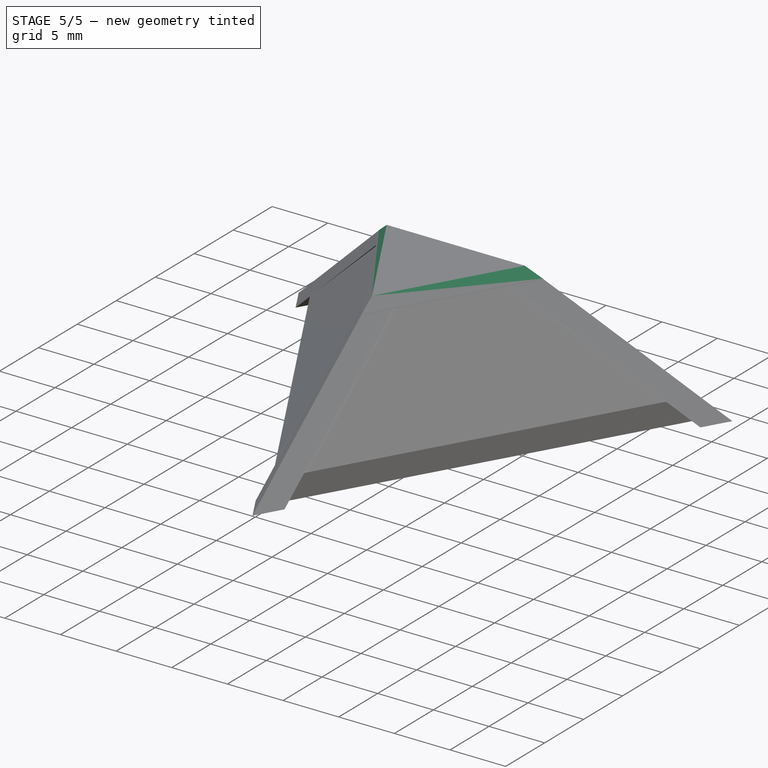
[diagram: stage 5 of 5 — iso view after this stage's code; geometry added in this stage tinted green]
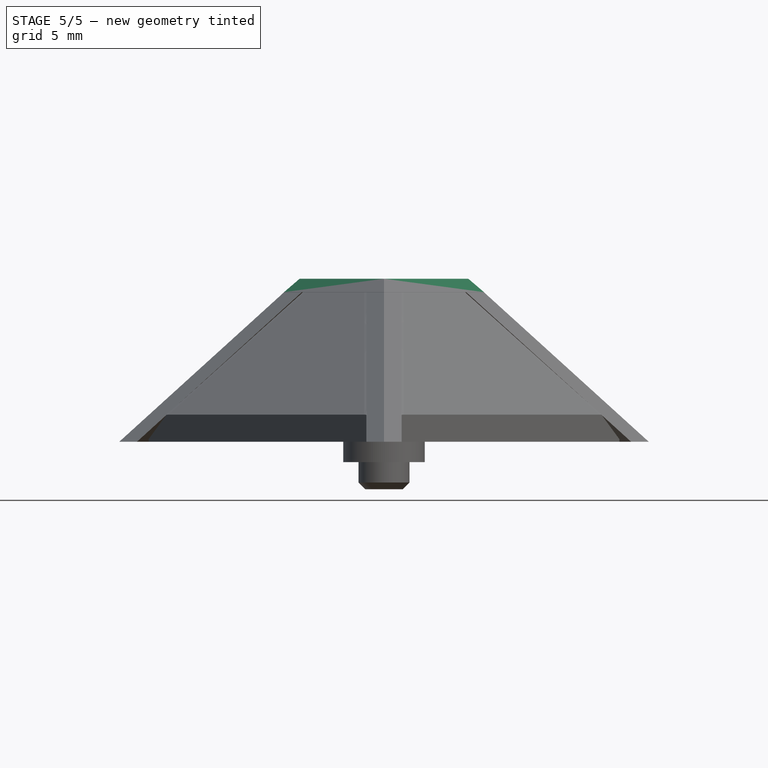
[diagram: stage 5 of 5 — front view after this stage's code; geometry added in this stage tinted green]
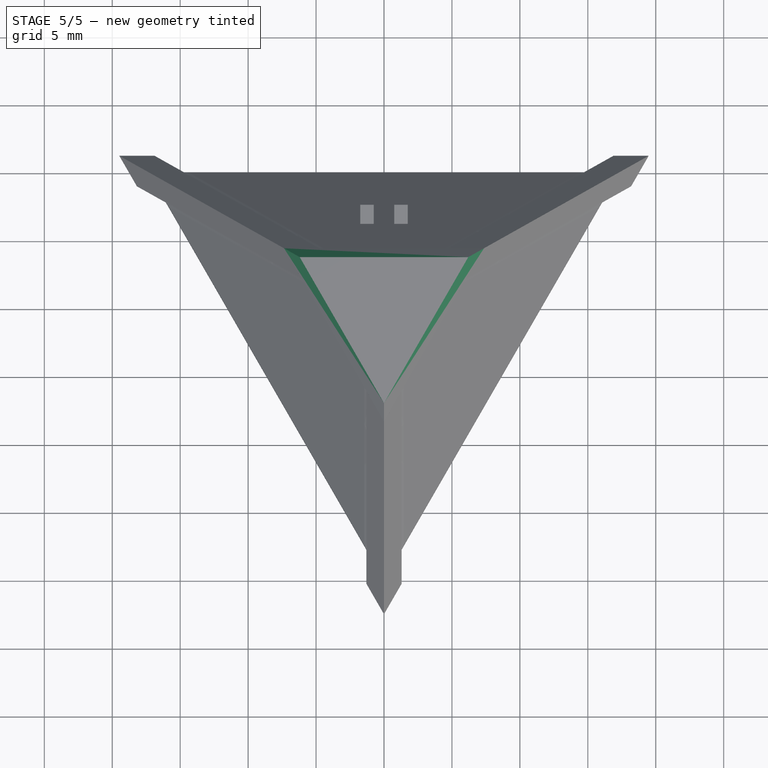
[diagram: stage 5 of 5 — top view after this stage's code; geometry added in this stage tinted green]
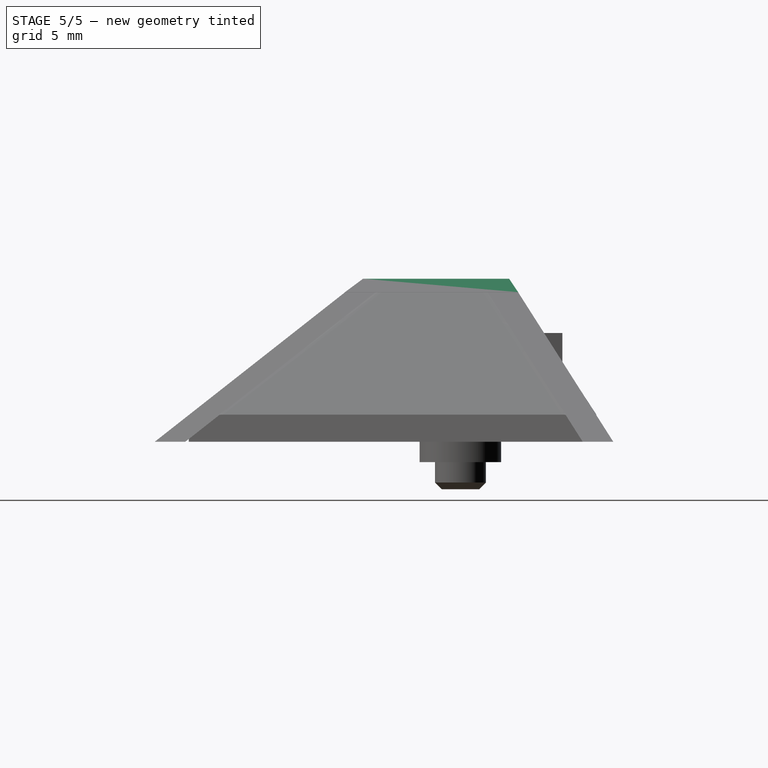
[diagram: stage 5 of 5 — right view after this stage's code; geometry added in this stage tinted green]
FEATURE [Sketcher::SketchObject] Sketch001
  AttachmentOffset = pos=(0,0,10) rot=(0,0,1;0rad)
  FullyConstrained = true
  MapMode = 5
  Placement = pos=(0,0,12) rot=(0,0,1;0rad)
  Support = -> [Pad]
  sketch-geometry (4):
    g0: LineSegment StartX=-1.8e-15 StartY=-7 StartZ=0 EndX=6.06218 EndY=3.5 EndZ=0
    g1: LineSegment StartX=6.06218 StartY=3.5 StartZ=0 EndX=-6.06218 EndY=3.5 EndZ=0
    g2: LineSegment StartX=-6.06218 StartY=3.5 StartZ=0 EndX=-1.8e-15 EndY=-7 EndZ=0
    g3: Circle CenterX=0 CenterY=0 CenterZ=0 NormalX=0 NormalY=0 NormalZ=1 AngleXU=0 Radius=7
  constraints (11):
    c: Coincident(g0,g1)
    c: Coincident(g1,g2)
    c: Coincident(g2,g0)
    c: Equal(g0,g1)
    c: Equal(g0,g2)
    c: PointOnObject(g0,g3)
    c: PointOnObject(g1,g3)
    c: PointOnObject(g2,g3)
    c: Coincident(g3,g-1)
    c: PointOnObject(g2,g-2)
    c: Diameter(g3) = 14
FEATURE [Sketcher::SketchObject] Sketch002
  FullyConstrained = true
  MapMode = 5
  Placement = pos=(0,0,2) rot=(0,0,1;0rad)
  Support = -> [Pad]
  sketch-geometry (7):
    g0: Circle CenterX=0 CenterY=0 CenterZ=0 NormalX=0 NormalY=0 NormalZ=1 AngleXU=0 Radius=20
    g1: LineSegment StartX=0 StartY=0 StartZ=0 EndX=17.3205 EndY=10 EndZ=0
    g2: LineSegment StartX=0 StartY=0 StartZ=0 EndX=-17.3205 EndY=10 EndZ=0
    g3: LineSegment StartX=0 StartY=0 StartZ=0 EndX=-6e-16 EndY=-20 EndZ=0
    g4: LineSegment StartX=17.3205 StartY=10 StartZ=0 EndX=-17.3205 EndY=10 EndZ=0
    g5: LineSegment StartX=-17.3205 StartY=10 StartZ=0 EndX=0 EndY=-20 EndZ=0
    g6: LineSegment StartX=-6e-16 StartY=-20 StartZ=0 EndX=17.3205 EndY=10 EndZ=0
  constraints (17):
    c: Coincident(g0,g-1)
    c: Diameter(g0) = 40
    c: Coincident(g1,g0)
    c: PointOnObject(g1,g0)
    c: Coincident(g2,g0)
    c: PointOnObject(g2,g0)
    c: Coincident(g3,g0)
    c: PointOnObject(g3,g0)
    c: Angle(g-1,g1) = 0.523599
    c: Angle(g-1,g2) = 2.61799
    c: Angle(g3,g-1) = 1.5708
    c: Coincident(g2,g4)
    c: Coincident(g1,g4)
    c: Coincident(g5,g4)
    c: Coincident(g5,g3)
    c: Coincident(g6,g5)
    c: Coincident(g6,g4)
FEATURE [PartDesign::AdditiveLoft] AdditiveLoft
  BaseFeature = -> Pad
  Closed = false
  Profile = -> Sketch002
  Ruled = false
  Sections = -> [Sketch001]
FEATURE [Sketcher::SketchObject] Sketch003
  FullyConstrained = true
  MapMode = 5
  Placement = pos=(0,0,0) rot=(1,0,0;3.14159rad)
  Support = -> [AdditiveLoft]
  sketch-geometry (1):
    g0: Circle CenterX=0 CenterY=0 CenterZ=0 NormalX=0 NormalY=0 NormalZ=1 AngleXU=0 Radius=2.5
  constraints (2):
    c: Coincident(g0,g-1)
    c: Diameter(g0) = 5
FEATURE [PartDesign::Pocket] Pocket
  BaseFeature = -> AdditiveLoft
  Direction = (0,0,1)
  Length = 4
  Length2 = 5
  Profile = -> Sketch003
  ReferenceAxis = -> Sketch003 [N_Axis]
  Type = 0
FEATURE [PartDesign::Fillet] Fillet
  Base = -> Pocket [Edge13,Edge12,Edge16,Edge11,Edge14,Edge15]
  BaseFeature = -> Pocket
  Radius = 2
  SupportTransform = false
  UseAllEdges = false
FEATURE [PartDesign::Chamfer] Chamfer
  Angle = 34
  Base = -> AdditiveLoft003 [Edge21,Edge24,Edge14]
  BaseFeature = -> AdditiveLoft003
  ChamferType = 2
  FlipDirection = false
  Size = 0.99
  Size2 = 1
  SupportTransform = false
  UseAllEdges = false
FEATURE [PartDesign::Boolean] Boolean
  BaseFeature = -> Chamfer
  Group = -> [Body]
  Type = 1
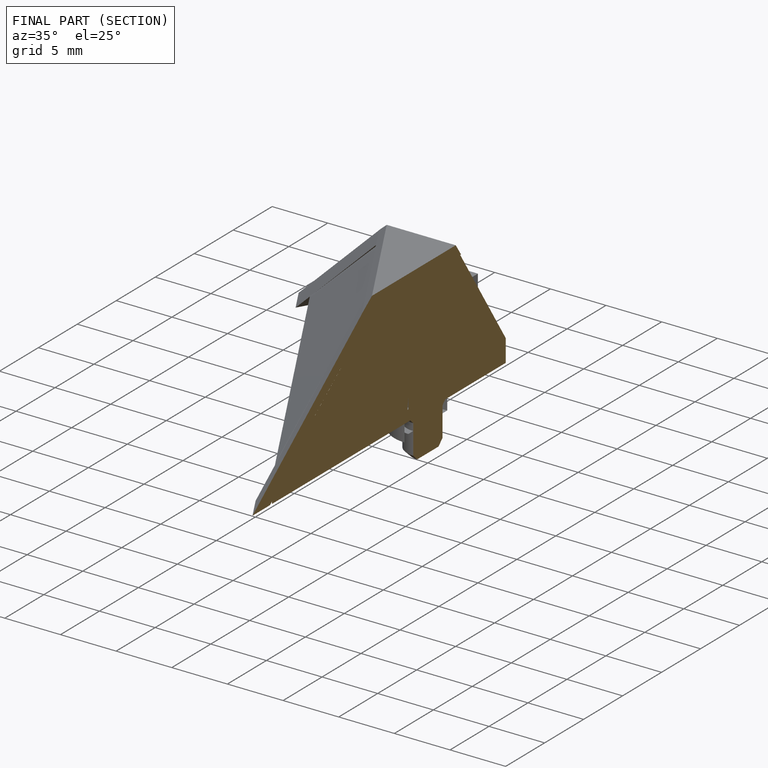
[diagram: finished part — half-section view (interior)]
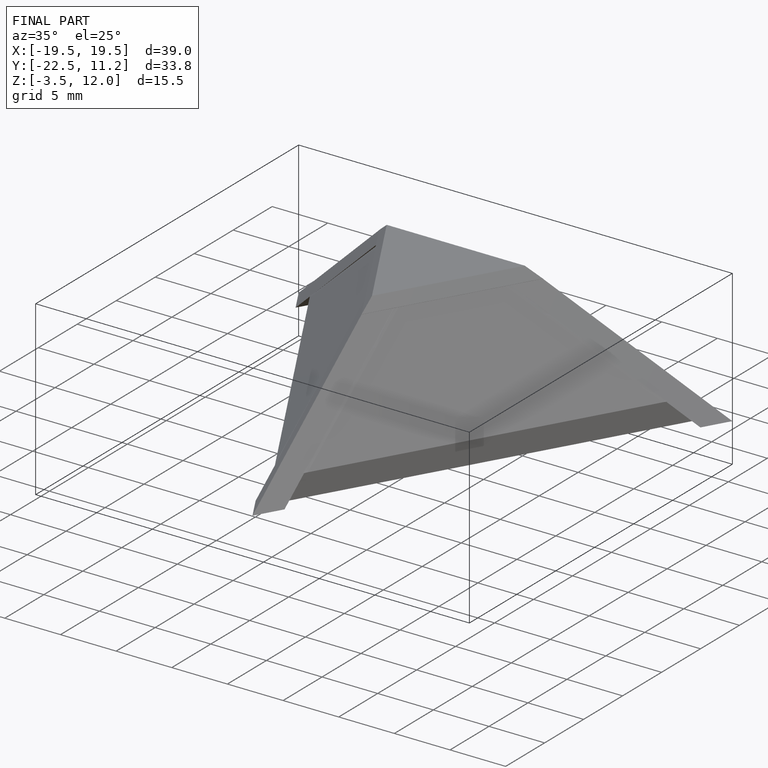
[diagram: finished part — iso view with bounding-box wireframe]
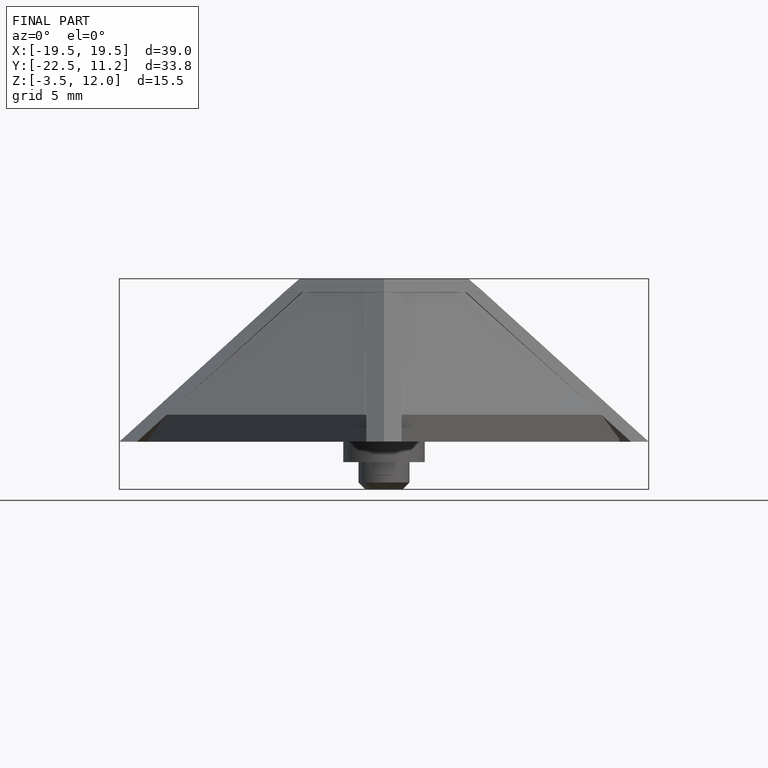
[diagram: finished part — front view with bounding-box wireframe]
